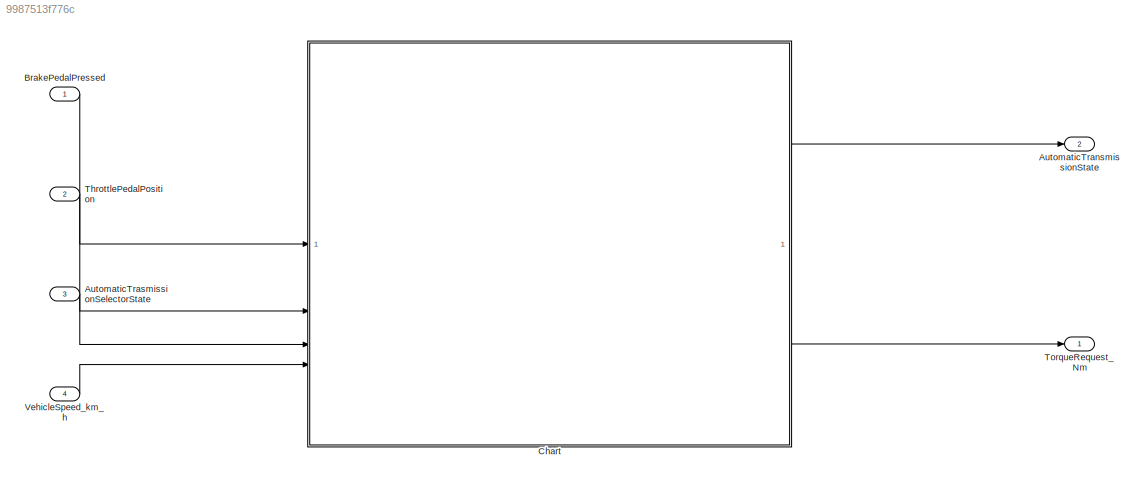
MODEL slx_9987513f776c
KIND model
CONFIG AbsTol = auto
CONFIG EnableMultiTasking = off
CONFIG FixedStep = 1/100
CONFIG MaxStep = auto
CONFIG MinStep = auto
CONFIG RelTol = 1e-3
CONFIG SampleTimeConstraint = Unconstrained
CONFIG SolverName = FixedStepAuto
CONFIG StartTime = 0.0
CONFIG StopTime = 10.0
BLOCK [Outport] AutomaticTransmissionState
  OutDataTypeStr = Enum: TransmissionState
  Port = 2
BLOCK [Inport] AutomaticTrasmissionSelectorState
  OutDataTypeStr = Enum: TransmissionState
  Port = 3
BLOCK [Inport] BrakePedalPressed
  OutDataTypeStr = boolean
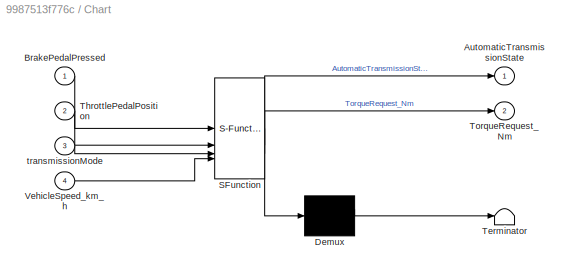
BLOCK [SubSystem] Chart
  ErrorFcn = Stateflow.Translate.translate
  PermitHierarchicalResolution = ExplicitOnly
  SFBlockType = Chart
  TreatAsAtomicUnit = on
BLOCK [Demux] Chart/ Demux 
  Outputs = 1
BLOCK [S-Function] Chart/ SFunction 
  EnableBusSupport = on
  FunctionName = sf_sfun
  Parameters = MAX_RDB_ENGAGE_SPEED,MAX_TORQUE,MAX_TORQUE_REVERSE
  PortCounts = [4 3]
  SFcnIsStateOwnerBlock = off
  SFunctionDeploymentMode = off
  Tag = Stateflow S-Function 3
BLOCK [Terminator] Chart/ Terminator 
BLOCK [Outport] Chart/AutomaticTransmissionState
BLOCK [Inport] Chart/BrakePedalPressed
BLOCK [Inport] Chart/ThrottlePedalPosition
  Port = 2
BLOCK [Outport] Chart/TorqueRequest_Nm
  Port = 2
BLOCK [Inport] Chart/VehicleSpeed_km_h
  Port = 4
BLOCK [Inport] Chart/transmissionMode
  Port = 3
BLOCK [Inport] ThrottlePedalPosition
  OutDataTypeStr = single
  Port = 2
BLOCK [Outport] TorqueRequest_Nm
  OutDataTypeStr = single
  Unit = N*m
BLOCK [Inport] VehicleSpeed_km_h
  OutDataTypeStr = single
  Port = 4
  Unit = km/h
LINE AutomaticTrasmissionSelectorState:1 -> Chart:3
LINE BrakePedalPressed:1 -> Chart:1
LINE Chart:1 -> AutomaticTransmissionState:1
LINE Chart:2 -> TorqueRequest_Nm:1
LINE ThrottlePedalPosition:1 -> Chart:2
LINE VehicleSpeed_km_h:1 -> Chart:4
CHART Chart states=13 transitions=26
  STATE_LABEL 'Park\nen:\nAutomaticTransmissionState = TransmissionState.Park;\ndu:\nTorqueRequest_Nm = single(0);\n'
  STATE_LABEL 'Neutral\nen:\nAutomaticTransmissionState = TransmissionState.Neutral;\ndu:\nTorqueRequest_Nm = single(0);'
  STATE_LABEL 'Drive\nen:\nAutomaticTransmissionState = TransmissionState.Drive;\n'
  STATE_LABEL 'ZeroTorque1\ndu:\nTorqueRequest_Nm = single(0);\n'
  STATE_LABEL 'Acceleration\ndu:\nTorqueRequest_Nm = single(MAX_TORQUE*(ThrottlePedalPosition));'
  STATE_LABEL 'StartToMove\ndu:\nTorqueRequest_Nm = single(5);\n'
  STATE_LABEL '[BrakePedalPressed ~= 1 && VehicleSpeed_km_h  < 5 ]'
  STATE_LABEL '[BrakePedalPressed == 1]'
  STATE_LABEL '[(BrakePedalPressed ~= 1)]'
  STATE_LABEL '[ (BrakePedalPressed == 1)]'
  STATE_LABEL '[ThrottlePedalPosition > 0 && BrakePedalPressed ~= 1]'
  STATE_LABEL 'ZeroTorque1\ndu:\nTorqueRequest_Nm = single(0);\n'
  STATE_LABEL 'Acceleration\ndu:\nTorqueRequest_Nm = single(MAX_TORQUE*(ThrottlePedalPosition));'
  STATE_LABEL 'StartToMove\ndu:\nTorqueRequest_Nm = single(5);\n'
  STATE_LABEL 'Brake\nen:\nAutomaticTransmissionState = TransmissionState.Brake'
  STATE_LABEL 'AccelerationRegion\ndu:\nTorqueRequest_Nm = single(MAX_TORQUE*(3/2)*(ThrottlePedalPosition - (1/3)));'
  STATE_LABEL 'ZeroTorque\nTorqueRequest_Nm = single(0);\n'
  STATE_LABEL 'DecelerationRegion\ndu:\nTorqueRequest_Nm = single(-MAX_TORQUE*(1 - 3*ThrottlePedalPosition));'
  STATE_LABEL '[ThrottlePedalPosition > (1/3) && BrakePedalPressed ~= 1]'
  STATE_LABEL '[ (ThrottlePedalPosition >(1/3)) && BrakePedalPressed ~= 1]'
  STATE_LABEL '[ ThrottlePedalPosition < (1/3) ]'
  STATE_LABEL '[VehicleSpeed_km_h < MAX_RDB_ENGAGE_SPEED]'
  STATE_LABEL 'AccelerationRegion\ndu:\nTorqueRequest_Nm = single(MAX_TORQUE*(3/2)*(ThrottlePedalPosition - (1/3)));'
  STATE_LABEL 'ZeroTorque\nTorqueRequest_Nm = single(0);\n'
  STATE_LABEL 'DecelerationRegion\ndu:\nTorqueRequest_Nm = single(-MAX_TORQUE*(1 - 3*ThrottlePedalPosition));'
  STATE_LABEL 'Reverse\nen:\nAutomaticTransmissionState = TransmissionState.Reverse;\n'
  STATE_LABEL 'Deceleration\ndu:\nTorqueRequest_Nm = single(-MAX_TORQUE_REVERSE*(ThrottlePedalPosition));'
  STATE_LABEL 'ZeroTorque\nTorqueRequest_Nm = single(0);\n'
  STATE_LABEL '[(BrakePedalPressed == 0)]'
  STATE_LABEL '[(BrakePedalPressed == 1)]'
  STATE_LABEL 'Deceleration\ndu:\nTorqueRequest_Nm = single(-MAX_TORQUE_REVERSE*(ThrottlePedalPosition));'
  STATE_LABEL 'ZeroTorque\nTorqueRequest_Nm = single(0);\n'
CHART  states=0 transitions=0
